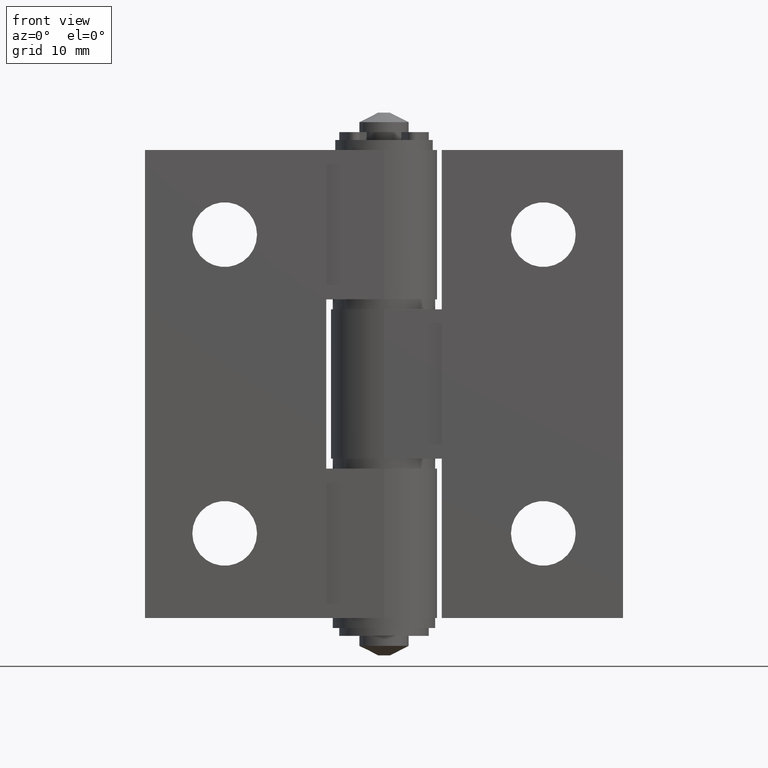
[diagram: clean part render]
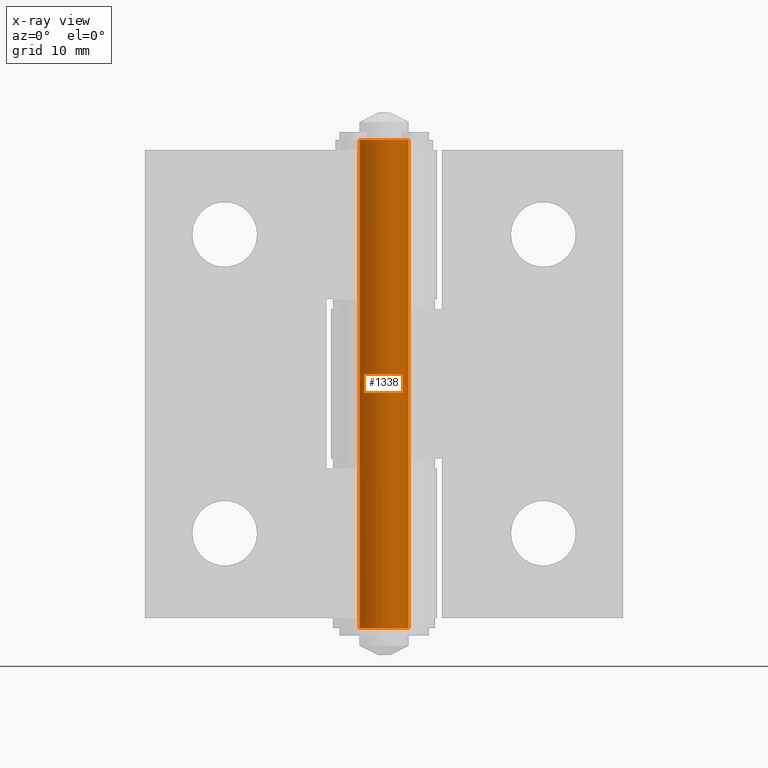
[diagram: x-ray — body ghosted, one internal face saturated and labeled with its STEP entity id]
A machine part, front view, then the same camera in x-ray: the body is ghosted and one INTERNAL B-rep face — a face not visible from any outside direction — is saturated and labeled: STEP entity #1338.
In plain terms, the highlighted cylindrical surface (bore or boss wall) has radius 2.475 mm, axis along (-0, 0, 1).
Its self-contained STEP definition (entity closure, byte-faithful):
#108=CYLINDRICAL_SURFACE('',#1491,2.475);
#142=FACE_BOUND('',#329,.T.);
#220=FACE_OUTER_BOUND('',#328,.T.);
#328=EDGE_LOOP('',(#1206));
#329=EDGE_LOOP('',(#1207));
#415=CIRCLE('',#1490,2.475);
#416=CIRCLE('',#1492,2.475);
#721=VERTEX_POINT('',#2293);
#722=VERTEX_POINT('',#2296);
#887=EDGE_CURVE('',#721,#721,#415,.T.);
#888=EDGE_CURVE('',#722,#722,#416,.T.);
#1206=ORIENTED_EDGE('',*,*,#887,.T.);
#1207=ORIENTED_EDGE('',*,*,#888,.F.);
#1338=ADVANCED_FACE('',(#220,#142),#108,.T.);
#1490=AXIS2_PLACEMENT_3D('',#2294,#1884,#1885);
#1491=AXIS2_PLACEMENT_3D('',#2295,#1886,#1887);
#1492=AXIS2_PLACEMENT_3D('',#2297,#1888,#1889);
#1884=DIRECTION('center_axis',(1.05317778652199E-16,-1.,0.));
#1885=DIRECTION('ref_axis',(1.,1.05317778652199E-16,0.));
#1886=DIRECTION('center_axis',(1.05317778652199E-16,-1.,0.));
#1887=DIRECTION('ref_axis',(-1.,-1.05317778652199E-16,0.));
#1888=DIRECTION('center_axis',(1.05317778652199E-16,-1.,0.));
#1889=DIRECTION('ref_axis',(1.,1.05317778652199E-16,0.));
#2293=CARTESIAN_POINT('',(2.475,-2.75,3.0310008278897E-16));
#2294=CARTESIAN_POINT('Origin',(2.89623891293548E-16,-2.75,0.));
#2295=CARTESIAN_POINT('Origin',(2.86990946827243E-15,-27.25,0.));
#2296=CARTESIAN_POINT('',(2.47500000000001,-51.75,3.0310008278897E-16));
#2297=CARTESIAN_POINT('Origin',(5.4501950452513E-15,-51.75,0.));